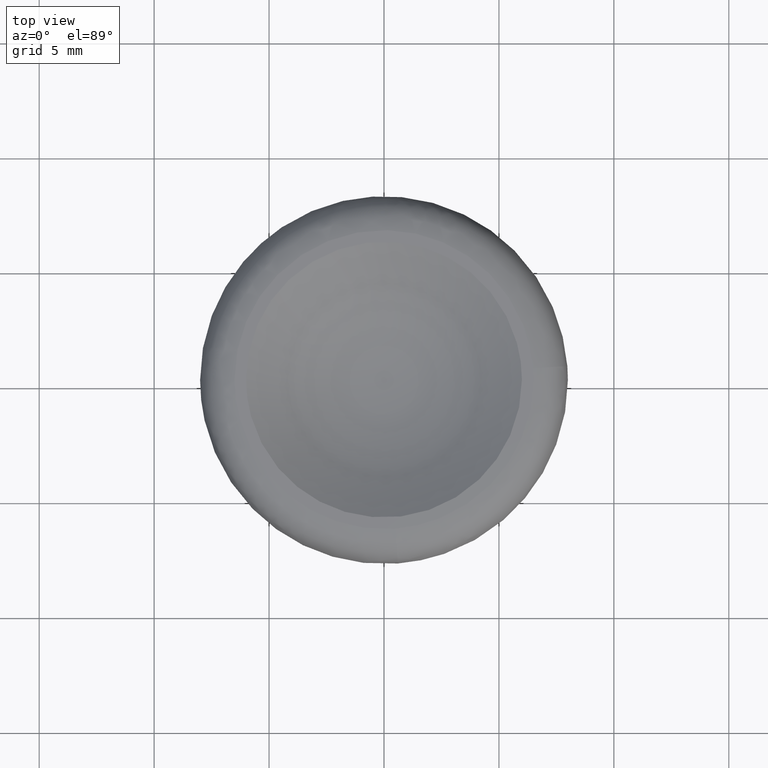
[diagram: clean part render]
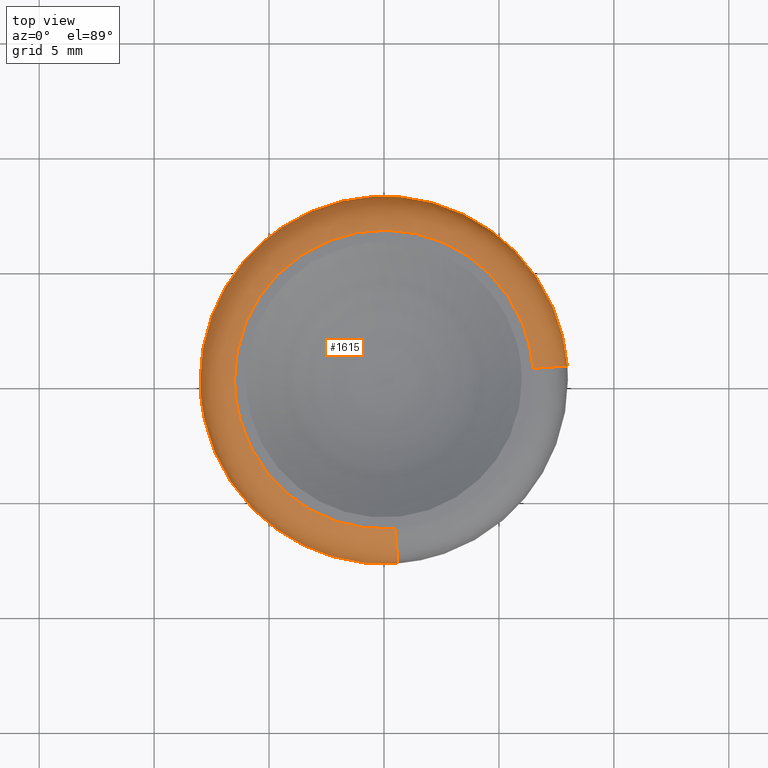
[diagram: same view with one face highlighted and labeled with its STEP entity id]
A machine part, top view. The second image highlights one B-rep face of the part: STEP entity #1615.
In plain terms, the highlighted face is a freeform B-spline surface patch.
Its self-contained STEP definition (entity closure, byte-faithful):
#70=CARTESIAN_POINT('',(-7.999791268970040,0.0,8.102537222004742));
#71=VERTEX_POINT('',#70);
#72=CARTESIAN_POINT('',(-4.451273431106951,6.647014858299115,8.102536294644695));
#73=VERTEX_POINT('',#72);
#74=CARTESIAN_POINT('',(-7.999791268970040,0.0,8.102537222004742));
#75=CARTESIAN_POINT('',(-7.999790944459363,4.270697458956790,8.102536758324719));
#76=CARTESIAN_POINT('',(-4.451273431106951,6.647014858299113,8.102536294644695));
#84=(BOUNDED_CURVE()B_SPLINE_CURVE(2,(#74,#75,#76),.UNSPECIFIED.,.F.,.U.)B_SPLINE_CURVE_WITH_KNOTS((3,3),(0.0,0.154565967469865),.UNSPECIFIED.)CURVE()GEOMETRIC_REPRESENTATION_ITEM()RATIONAL_B_SPLINE_CURVE((1.0,0.818914705074944,0.861746400587144))REPRESENTATION_ITEM(''));
#85=EDGE_CURVE('',#71,#73,#84,.T.);
#171=CARTESIAN_POINT('',(0.766746014200358,7.962961816864624,8.102537222007197));
#172=VERTEX_POINT('',#171);
#178=CARTESIAN_POINT('',(7.977063064077123,0.602598721183191,8.102537222054089));
#179=VERTEX_POINT('',#178);
#180=CARTESIAN_POINT('',(0.766746014200358,7.962961816864624,8.102537222007197));
#181=CARTESIAN_POINT('',(7.469807547726403,7.317530401753148,8.102537222009293));
#182=CARTESIAN_POINT('',(7.977063064077123,0.602598721183191,8.102537222054089));
#190=(BOUNDED_CURVE()B_SPLINE_CURVE(2,(#180,#181,#182),.UNSPECIFIED.,.F.,.U.)B_SPLINE_CURVE_WITH_KNOTS((3,3),(0.266651095235455,0.486870159262275),.UNSPECIFIED.)CURVE()GEOMETRIC_REPRESENTATION_ITEM()RATIONAL_B_SPLINE_CURVE((0.963582689690937,0.739948225498888,0.970850634527065))REPRESENTATION_ITEM(''));
#191=EDGE_CURVE('',#172,#179,#190,.T.);
#208=CARTESIAN_POINT('',(0.602598721181704,-7.977063064076896,8.102537222059056));
#209=VERTEX_POINT('',#208);
#223=CARTESIAN_POINT('',(0.602598721181704,-7.977063064076896,8.102537222059056));
#224=CARTESIAN_POINT('',(0.301727980234109,-7.999791268970040,8.102537222004742));
#225=CARTESIAN_POINT('',(0.0,-7.999791268970040,8.102537222004742));
#226=CARTESIAN_POINT('',(-7.999791268970040,-7.999791268970040,8.102537222004742));
#227=CARTESIAN_POINT('',(-7.999791268970040,0.0,8.102537222004742));
#235=(BOUNDED_CURVE()B_SPLINE_CURVE(2,(#223,#224,#225,#226,#227),.UNSPECIFIED.,.F.,.U.)B_SPLINE_CURVE_WITH_KNOTS((3,2,3),(0.736870159262337,0.750000000000000,1.0),.UNSPECIFIED.)CURVE()GEOMETRIC_REPRESENTATION_ITEM()RATIONAL_B_SPLINE_CURVE((0.970850634527196,0.984617434735352,1.0,0.707106781186548,1.0))REPRESENTATION_ITEM(''));
#236=EDGE_CURVE('',#209,#71,#235,.T.);
#255=CARTESIAN_POINT('',(-4.451273431106951,6.647014858299113,8.102536294644695));
#256=CARTESIAN_POINT('',(-2.431195947758381,7.999790712140009,8.102536689197011));
#257=CARTESIAN_POINT('',(0.000000088561624,7.999791136700038,8.102537095439104));
#258=CARTESIAN_POINT('',(0.384257573456179,7.999791203802965,8.102537159646827));
#259=CARTESIAN_POINT('',(0.766746014200358,7.962961816864624,8.102537222007197));
#267=(BOUNDED_CURVE()B_SPLINE_CURVE(2,(#255,#256,#257,#258,#259),.UNSPECIFIED.,.F.,.U.)B_SPLINE_CURVE_WITH_KNOTS((3,2,3),(0.154565967469865,0.250000000000000,0.266651095235455),.UNSPECIFIED.)CURVE()GEOMETRIC_REPRESENTATION_ITEM()RATIONAL_B_SPLINE_CURVE((0.861746400587144,0.888192076111604,1.0,0.980492028478873,0.963582689690937))REPRESENTATION_ITEM(''));
#268=EDGE_CURVE('',#73,#172,#267,.T.);
#1518=CARTESIAN_POINT('',(0.482288239524336,-6.384420621081302,9.496616764885140));
#1519=CARTESIAN_POINT('',(-5.902132381556966,-6.866708860605638,9.496616764885143));
#1520=CARTESIAN_POINT('',(-6.384420621081302,-0.482288239524336,9.496616764885140));
#1521=CARTESIAN_POINT('',(-6.866708860605638,5.902132381556966,9.496616764885143));
#1522=CARTESIAN_POINT('',(-0.482288239524336,6.384420621081302,9.496616764885140));
#1523=CARTESIAN_POINT('',(5.902132381556966,6.866708860605639,9.496616764885143));
#1524=CARTESIAN_POINT('',(6.384420621081302,0.482288239524337,9.496616764885140));
#1525=CARTESIAN_POINT('',(0.602732369115960,-7.978832264648148,9.604190729261699));
#1526=CARTESIAN_POINT('',(-7.376099895532184,-8.581564633764106,9.604190729261697));
#1527=CARTESIAN_POINT('',(-7.978832264648148,-0.602732369115961,9.604190729261699));
#1528=CARTESIAN_POINT('',(-8.581564633764106,7.376099895532184,9.604190729261697));
#1529=CARTESIAN_POINT('',(-0.602732369115961,7.978832264648148,9.604190729261699));
#1530=CARTESIAN_POINT('',(7.376099895532184,8.581564633764106,9.604190729261697));
#1531=CARTESIAN_POINT('',(7.978832264648148,0.602732369115961,9.604190729261699));
#1532=CARTESIAN_POINT('',(0.602862956569555,-7.980560951278386,8.001622655857091));
#1533=CARTESIAN_POINT('',(-7.377697994708830,-8.583423907847941,8.001622655857091));
#1534=CARTESIAN_POINT('',(-7.980560951278386,-0.602862956569556,8.001622655857091));
#1535=CARTESIAN_POINT('',(-8.583423907847941,7.377697994708829,8.001622655857091));
#1536=CARTESIAN_POINT('',(-0.602862956569556,7.980560951278386,8.001622655857091));
#1537=CARTESIAN_POINT('',(7.377697994708829,8.583423907847941,8.001622655857091));
#1538=CARTESIAN_POINT('',(7.980560951278386,0.602862956569557,8.001622655857091));
#1546=(BOUNDED_SURFACE()B_SPLINE_SURFACE(2,2,((#1518,#1525,#1532),(#1519,#1526,#1533),(#1520,#1527,#1534),(#1521,#1528,#1535),(#1522,#1529,#1536),(#1523,#1530,#1537),(#1524,#1531,#1538)),.UNSPECIFIED.,.F.,.F.,.U.)B_SPLINE_SURFACE_WITH_KNOTS((3,2,2,3),(3,3),(0.0,13.260300160789541,26.520600321579089,39.780900482368637),(0.0,2.602243603861897),.UNSPECIFIED.)GEOMETRIC_REPRESENTATION_ITEM()RATIONAL_B_SPLINE_SURFACE(((0.916898868688607,0.625832337538897,0.914743518768376),(0.648345407711988,0.442530289759583,0.646821345167563),(0.916898868688607,0.625832337538897,0.914743518768376),(0.648345407711988,0.442530289759583,0.646821345167563),(0.916898868688607,0.625832337538897,0.914743518768376),(0.648345407711988,0.442530289759583,0.646821345167563),(0.916898868688607,0.625832337538897,0.914743518768376)))REPRESENTATION_ITEM('')SURFACE());
#1547=ORIENTED_EDGE('',*,*,#236,.F.);
#1548=CARTESIAN_POINT('',(0.489872814415252,-6.484823476171569,9.500000000000000));
#1549=VERTEX_POINT('',#1548);
#1550=CARTESIAN_POINT('',(0.489872814415252,-6.484823476171569,9.500000000000000));
#1551=CARTESIAN_POINT('',(0.595386032963146,-7.881583158865113,9.499999999797673));
#1552=CARTESIAN_POINT('',(0.602598721181704,-7.977063064076896,8.102537222059056));
#1560=(BOUNDED_CURVE()B_SPLINE_CURVE(2,(#1550,#1551,#1552),.UNSPECIFIED.,.F.,.U.)B_SPLINE_CURVE_WITH_KNOTS((3,3),(-1.726123028516655,-0.279788980816687),.UNSPECIFIED.)CURVE()GEOMETRIC_REPRESENTATION_ITEM()RATIONAL_B_SPLINE_CURVE((0.891658473036887,0.650974867333155,0.889698855083151))REPRESENTATION_ITEM(''));
#1561=EDGE_CURVE('',#1549,#209,#1560,.T.);
#1562=ORIENTED_EDGE('',*,*,#1561,.F.);
#1563=CARTESIAN_POINT('',(-6.503300000000000,0.0,9.500000000000000));
#1564=VERTEX_POINT('',#1563);
#1565=CARTESIAN_POINT('',(0.489872814415252,-6.484823476171569,9.500000000000000));
#1566=CARTESIAN_POINT('',(0.245284846569070,-6.503300000000000,9.500000000000002));
#1567=CARTESIAN_POINT('',(0.0,-6.503300000000000,9.500000000000000));
#1568=CARTESIAN_POINT('',(-6.503300000000000,-6.503300000000000,9.500000000000000));
#1569=CARTESIAN_POINT('',(-6.503300000000000,0.0,9.500000000000000));
#1577=(BOUNDED_CURVE()B_SPLINE_CURVE(2,(#1565,#1566,#1567,#1568,#1569),.UNSPECIFIED.,.F.,.U.)B_SPLINE_CURVE_WITH_KNOTS((3,2,3),(0.736870159261432,0.750000000000000,1.0),.UNSPECIFIED.)CURVE()GEOMETRIC_REPRESENTATION_ITEM()RATIONAL_B_SPLINE_CURVE((0.970850634525298,0.984617434734291,1.0,0.707106781186547,1.0))REPRESENTATION_ITEM(''));
#1578=EDGE_CURVE('',#1549,#1564,#1577,.T.);
#1579=ORIENTED_EDGE('',*,*,#1578,.T.);
#1580=CARTESIAN_POINT('',(6.484823476236605,0.489872814431105,9.500000000000000));
#1581=VERTEX_POINT('',#1580);
#1582=CARTESIAN_POINT('',(-6.503300000000000,0.0,9.500000000000000));
#1583=CARTESIAN_POINT('',(-6.503300000000000,6.503300000000000,9.500000000000000));
#1584=CARTESIAN_POINT('',(0.0,6.503300000000000,9.500000000000000));
#1585=CARTESIAN_POINT('',(6.030560609734476,6.503300000000002,9.500000000000000));
#1586=CARTESIAN_POINT('',(6.484823476236605,0.489872814431105,9.500000000000000));
#1594=(BOUNDED_CURVE()B_SPLINE_CURVE(2,(#1582,#1583,#1584,#1585,#1586),.UNSPECIFIED.,.F.,.U.)B_SPLINE_CURVE_WITH_KNOTS((3,2,3),(0.0,0.250000000000000,0.486870159260856),.UNSPECIFIED.)CURVE()GEOMETRIC_REPRESENTATION_ITEM()RATIONAL_B_SPLINE_CURVE((1.0,0.707106781186547,1.0,0.722489346452931,0.970850634524090))REPRESENTATION_ITEM(''));
#1595=EDGE_CURVE('',#1564,#1581,#1594,.T.);
#1596=ORIENTED_EDGE('',*,*,#1595,.T.);
#1597=CARTESIAN_POINT('',(6.484823476236605,0.489872814431105,9.500000000000000));
#1598=CARTESIAN_POINT('',(7.881583158882828,0.595386032964485,9.499999999674319));
#1599=CARTESIAN_POINT('',(7.977063064077124,0.602598721183191,8.102537222054089));
#1607=(BOUNDED_CURVE()B_SPLINE_CURVE(2,(#1597,#1598,#1599),.UNSPECIFIED.,.F.,.U.)B_SPLINE_CURVE_WITH_KNOTS((3,3),(-1.726123028423245,-0.279788980809665),.UNSPECIFIED.)CURVE()GEOMETRIC_REPRESENTATION_ITEM()RATIONAL_B_SPLINE_CURVE((0.891658473005798,0.650974867347405,0.889698855085469))REPRESENTATION_ITEM(''));
#1608=EDGE_CURVE('',#1581,#179,#1607,.T.);
#1609=ORIENTED_EDGE('',*,*,#1608,.T.);
#1610=ORIENTED_EDGE('',*,*,#191,.F.);
#1611=ORIENTED_EDGE('',*,*,#268,.F.);
#1612=ORIENTED_EDGE('',*,*,#85,.F.);
#1613=EDGE_LOOP('',(#1547,#1562,#1579,#1596,#1609,#1610,#1611,#1612));
#1614=FACE_OUTER_BOUND('',#1613,.T.);
#1615=ADVANCED_FACE('',(#1614),#1546,.T.);